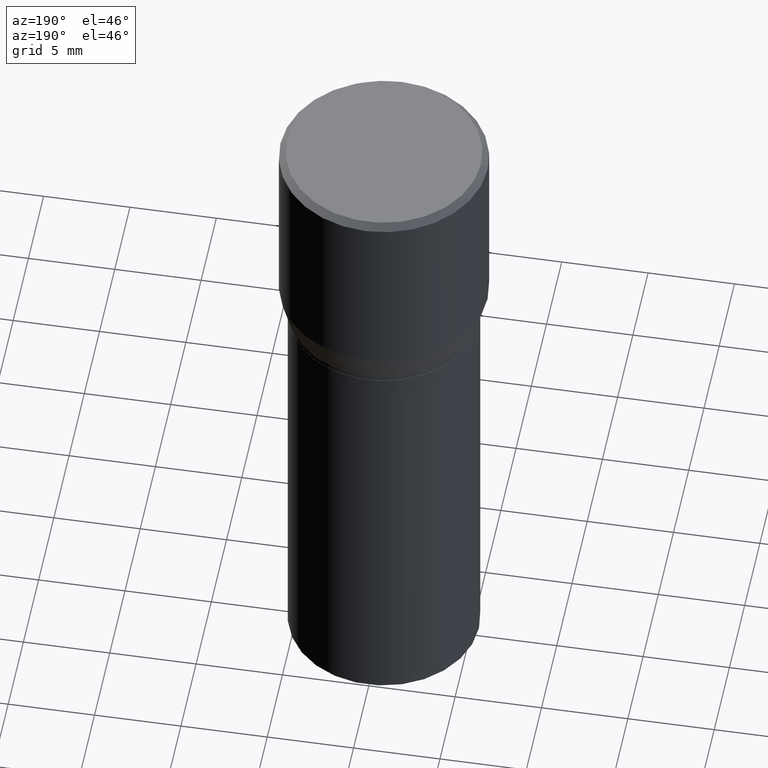
[diagram: clean part render]
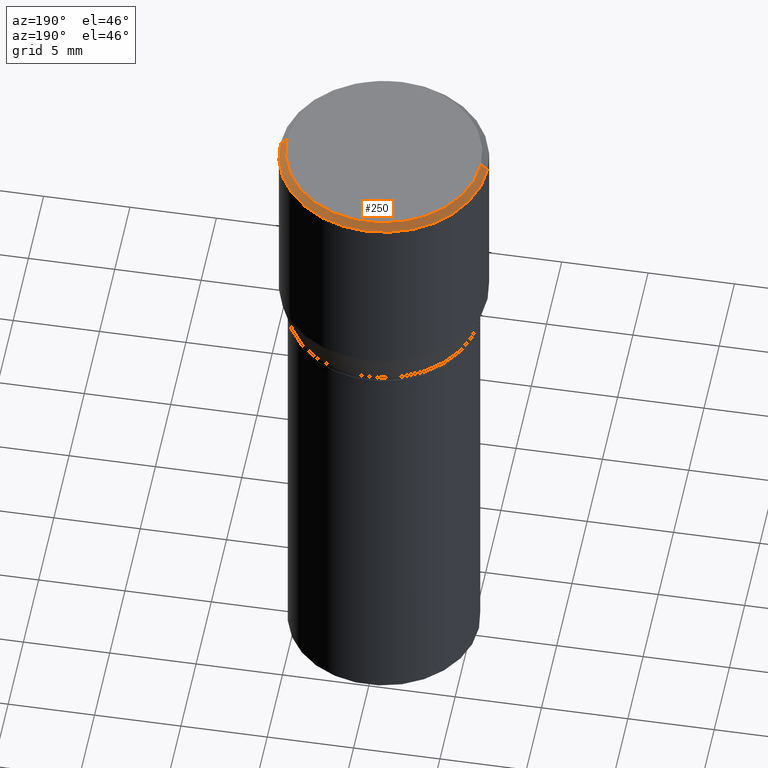
[diagram: same view with one face highlighted and labeled with its STEP entity id]
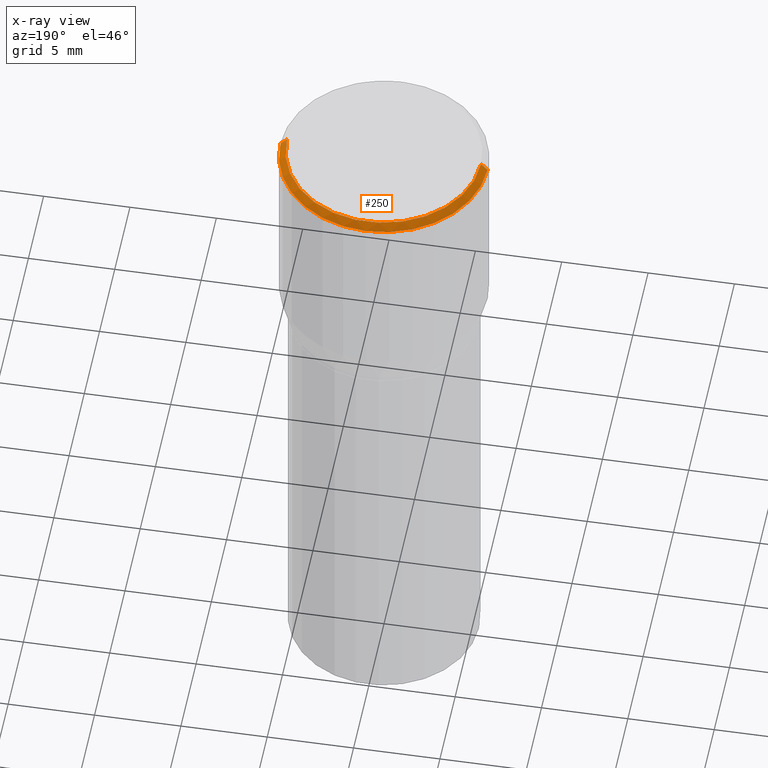
[diagram: x-ray of the same camera — body ghosted, the highlighted face saturated]
A machine part, auxiliary view. The second image highlights one B-rep face of the part: STEP entity #250.
The next image is the same camera in x-ray: the body ghosted, the highlighted face saturated — about 0% of this face is hidden behind the body in this view.
In plain terms, the highlighted conical surface has half-angle 45 deg.
Its self-contained STEP definition (entity closure, byte-faithful):
#26 = AXIS2_PLACEMENT_3D ( 'NONE', #133, #228, #455 ) ;
#32 = CARTESIAN_POINT ( 'NONE',  ( 0.2212000000000000077, -1.595182002131672613E-15, 4.701447564593453826E-17 ) ) ;
#59 = CARTESIAN_POINT ( 'NONE',  ( 3.668203209277705088E-31, -5.237222008264718399E-17, -0.01499999999999999944 ) ) ;
#75 = ORIENTED_EDGE ( 'NONE', *, *, #245, .T. ) ;
#93 = CARTESIAN_POINT ( 'NONE',  ( 0.2361999999999999933, -1.672821847156282947E-15, -0.01499999999999999944 ) ) ;
#97 = CIRCLE ( 'NONE', #188, 0.2212000000000000077 ) ;
#103 = DIRECTION ( 'NONE',  ( 1.000000000000000000, -6.982962677686267499E-15, 4.877828720335458505E-29 ) ) ;
#104 = VECTOR ( 'NONE', #131, 39.37007874015748143 ) ;
#127 = VERTEX_POINT ( 'NONE', #342 ) ;
#131 = DIRECTION ( 'NONE',  ( 0.7071067811865459074, -7.319954787623251312E-15, -0.7071067811865492381 ) ) ;
#133 = CARTESIAN_POINT ( 'NONE',  ( 3.668203209277705088E-31, -5.237222008264718399E-17, -0.01499999999999999944 ) ) ;
#164 = CONICAL_SURFACE ( 'NONE', #26, 0.2361999999999999933, 0.7853981633974459475 ) ;
#169 = FACE_OUTER_BOUND ( 'NONE', #297, .T. ) ;
#188 = AXIS2_PLACEMENT_3D ( 'NONE', #422, #382, #103 ) ;
#228 = DIRECTION ( 'NONE',  ( 2.445468806185136597E-29, -3.491481338843145583E-15, -1.000000000000000000 ) ) ;
#243 = CARTESIAN_POINT ( 'NONE',  ( -0.2361999999999999933, 1.597003564386848854E-15, -0.01499999999999999944 ) ) ;
#245 = EDGE_CURVE ( 'NONE', #127, #339, #268, .T. ) ;
#250 = ADVANCED_FACE ( 'NONE', ( #169 ), #164, .T. ) ;
#258 = EDGE_CURVE ( 'NONE', #404, #127, #346, .T. ) ;
#268 = CIRCLE ( 'NONE', #392, 0.2361999999999999933 ) ;
#280 = CARTESIAN_POINT ( 'NONE',  ( -0.2212000000000000077, 1.570817454345525709E-15, 4.701447564591266586E-17 ) ) ;
#294 = ORIENTED_EDGE ( 'NONE', *, *, #376, .F. ) ;
#297 = EDGE_LOOP ( 'NONE', ( #302, #407, #75, #294 ) ) ;
#302 = ORIENTED_EDGE ( 'NONE', *, *, #325, .F. ) ;
#311 = DIRECTION ( 'NONE',  ( 1.000000000000000000, -6.982962677686266711E-15, 0.000000000000000000 ) ) ;
#315 = DIRECTION ( 'NONE',  ( -0.7071067811865459074, 2.468850131082239706E-15, -0.7071067811865492381 ) ) ;
#325 = EDGE_CURVE ( 'NONE', #404, #436, #97, .T. ) ;
#339 = VERTEX_POINT ( 'NONE', #385 ) ;
#342 = CARTESIAN_POINT ( 'NONE',  ( 0.2361999999999999933, -1.701748004552143407E-15, -0.01499999999999999944 ) ) ;
#346 = LINE ( 'NONE', #93, #104 ) ;
#376 = EDGE_CURVE ( 'NONE', #436, #339, #424, .T. ) ;
#382 = DIRECTION ( 'NONE',  ( -2.445468806185136597E-29, 3.491481338843145583E-15, 1.000000000000000000 ) ) ;
#385 = CARTESIAN_POINT ( 'NONE',  ( -0.2361999999999999933, 8.973183152936629998E-16, -0.01499999999999999944 ) ) ;
#392 = AXIS2_PLACEMENT_3D ( 'NONE', #59, #408, #311 ) ;
#404 = VERTEX_POINT ( 'NONE', #32 ) ;
#407 = ORIENTED_EDGE ( 'NONE', *, *, #258, .T. ) ;
#408 = DIRECTION ( 'NONE',  ( -2.445468806185136597E-29, 3.491481338843145583E-15, 1.000000000000000000 ) ) ;
#422 = CARTESIAN_POINT ( 'NONE',  ( -1.149724336312568861E-45, 1.641501643732376549E-31, 4.701447564592356200E-17 ) ) ;
#424 = LINE ( 'NONE', #243, #451 ) ;
#436 = VERTEX_POINT ( 'NONE', #280 ) ;
#451 = VECTOR ( 'NONE', #315, 39.37007874015748143 ) ;
#455 = DIRECTION ( 'NONE',  ( -1.000000000000000000, 6.982962677686266711E-15, 0.000000000000000000 ) ) ;